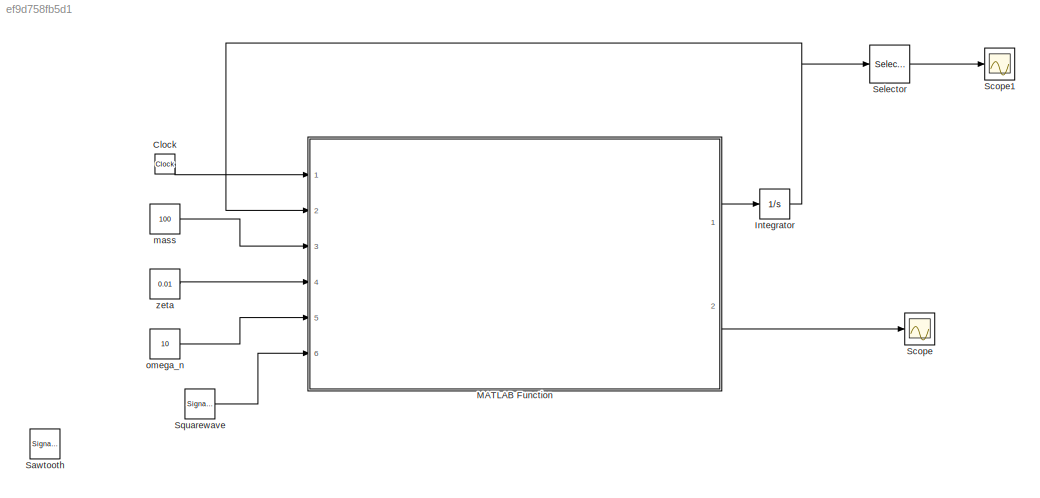
MODEL slx_ef9d758fb5d1
KIND model
CONFIG AbsTol = auto
CONFIG FixedStep = auto
CONFIG MaxStep = auto
CONFIG MinStep = auto
CONFIG RelTol = 1e-3
CONFIG SampleTimeConstraint = Unconstrained
CONFIG Solver = VariableStepAuto
CONFIG SolverMode = Auto
CONFIG SolverName = VariableStepAuto
CONFIG StartTime = 0.0
CONFIG StopTime = 20
BLOCK [Clock] Clock
BLOCK [Integrator] Integrator
  InitialCondition = [0.1 0]
  Ports = [1, 1]
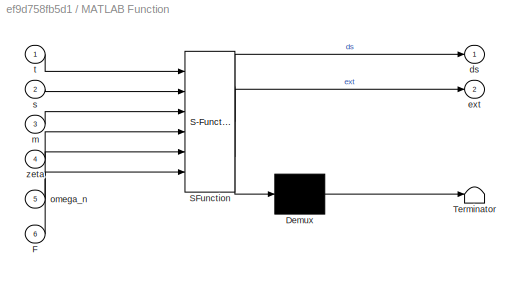
BLOCK [SubSystem] MATLAB Function
  ErrorFcn = Stateflow.Translate.translate
  PermitHierarchicalResolution = ExplicitOnly
  Ports = [6, 2]
  RequestExecContextInheritance = off
  SFBlockType = MATLAB Function
  TreatAsAtomicUnit = on
  Variant = off
BLOCK [Demux] MATLAB Function/ Demux 
  Outputs = 1
  Ports = [1, 1]
BLOCK [S-Function] MATLAB Function/ SFunction 
  EnableBusSupport = on
  FunctionName = sf_sfun
  PortCounts = [6 3]
  Ports = [6, 3]
  SFunctionDeploymentMode = off
  Tag = Stateflow S-Function testfor122_fun 2
BLOCK [Terminator] MATLAB Function/ Terminator 
BLOCK [Inport] MATLAB Function/F
  IconDisplay = Port number
  Port = 6
BLOCK [Outport] MATLAB Function/ds
  IconDisplay = Port number
BLOCK [Outport] MATLAB Function/ext
  IconDisplay = Port number
  Port = 2
BLOCK [Inport] MATLAB Function/m
  IconDisplay = Port number
  Port = 3
BLOCK [Inport] MATLAB Function/omega_n
  IconDisplay = Port number
  Port = 5
BLOCK [Inport] MATLAB Function/s
  IconDisplay = Port number
  Port = 2
BLOCK [Inport] MATLAB Function/t
  IconDisplay = Port number
BLOCK [Inport] MATLAB Function/zeta
  IconDisplay = Port number
  Port = 4
BLOCK [SignalGenerator] Sawtooth 
  Amplitude = 1000
  Frequency = 5
  Ports = [0, 1]
  Units = rad/sec
  WaveForm = sawtooth
BLOCK [Scope] Scope
  Ports = [1]
  ScopeSpecificationString = Simulink.scopes.TimeScopeBlockCfg('CurrentConfiguration', extmgr.ConfigurationSet(extmgr.Configuration('Core','General UI',true,'DisplayFullSourceName',true),extmgr.Configuration('Core','Source UI',true),extmgr.Configuration('Sources','WiredSimulink',true),extmgr.Configuration('Visuals','Time Domain',true,'SerializedDisplays',{struct('MinYLimReal','-1.25','MaxYLimReal','1.25','YLabelReal','x','Min...<+1492ch>
BLOCK [Scope] Scope1
  Ports = [1]
  ScopeSpecificationString = Simulink.scopes.TimeScopeBlockCfg('CurrentConfiguration', extmgr.ConfigurationSet(extmgr.Configuration('Core','General UI',true,'DisplayFullSourceName',true),extmgr.Configuration('Core','Source UI',true),extmgr.Configuration('Sources','WiredSimulink',true,'DataLoggingVariableName','ScopeData1'),extmgr.Configuration('Visuals','Time Domain',true,'SerializedDisplays',{struct('MinYLimReal','-0.12158',...<+1540ch>
BLOCK [Selector] Selector
  IndexOptions = Index vector (dialog)
  Indices = [1]
  InputPortWidth = 2
  OutputSizes = 1
  Ports = [1, 1]
BLOCK [SignalGenerator] Squarewave 
  Ports = [0, 1]
  Units = rad/sec
  WaveForm = square
BLOCK [Constant] mass
  Value = 100
BLOCK [Constant] omega_n
  Value = 10
BLOCK [Constant] zeta
  Value = 0.01
LINE Clock:1 -> MATLAB Function:1
NET Integrator:1 -> MATLAB Function:2, Selector:1
LINE MATLAB Function:1 -> Integrator:1
LINE MATLAB Function:2 -> Scope:1
LINE Selector:1 -> Scope1:1
LINE Squarewave :1 -> MATLAB Function:6
LINE mass:1 -> MATLAB Function:3
LINE omega_n:1 -> MATLAB Function:5
LINE zeta:1 -> MATLAB Function:4
note: NET lines group one-source signal fan-out (src -> all destinations, sorted); 1:1 wires keep LINE
CHART MATLAB Function states=1 transitions=1
  STATE_LABEL 'eML_blk_kernel()'
  STATE_LABEL 'SCRIPT:\nfunction [ds, ext] = testfor122_fun(t,s,m,zeta,omega_n,F)\n%#codegen\n\nx=s(1);\nv=s(2);\n\nc=2*m*omega_n*zeta;\nk=(omega_n^2)*m;\n\nx_dot=v;\nv_dot=(1/m)*(F-c*v-k*x);\n\nds=[x_dot;v_dot];\next=F;\n\n\n'
